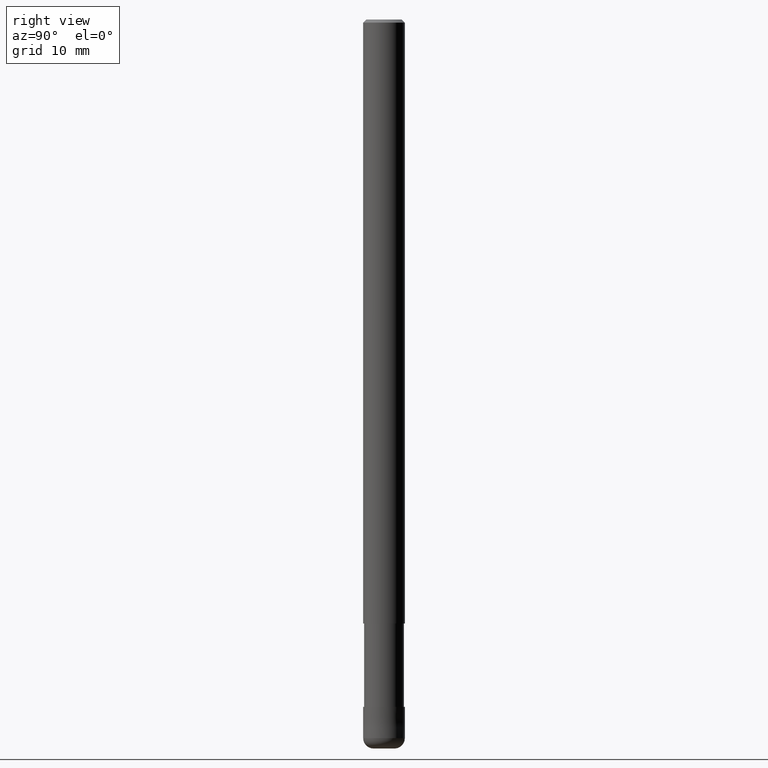
[diagram: clean part render]
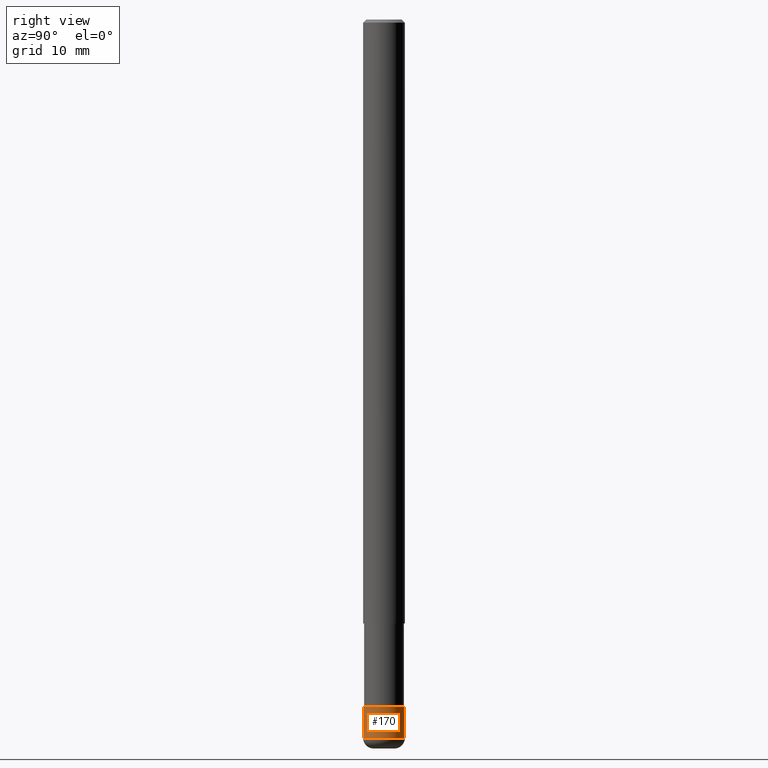
[diagram: same view with one face highlighted and labeled with its STEP entity id]
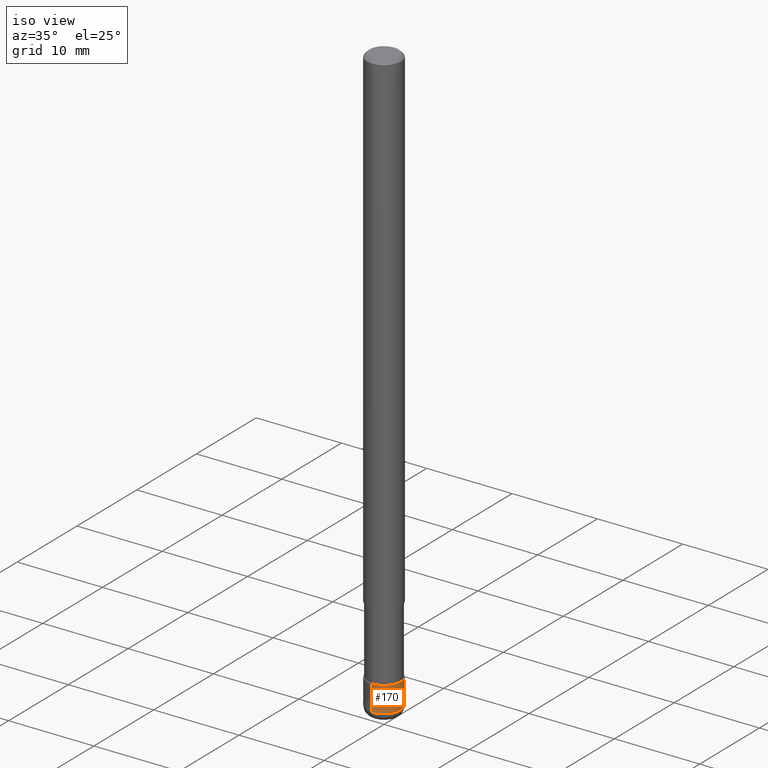
[diagram: same view with one face highlighted and labeled with its STEP entity id]
A machine part, right view. The second image highlights one B-rep face of the part: STEP entity #170.
A second angle (iso view) of the same face is appended — the face is thin or edge-on in the first view.
In plain terms, the highlighted conical surface has half-angle 0.002 deg.
Its self-contained STEP definition (entity closure, byte-faithful):
#102=EDGE_CURVE('',#106,#112,#240,.T.);
#106=VERTEX_POINT('',#244);
#112=VERTEX_POINT('',#252);
#124=EDGE_CURVE('',#106,#130,#267,.T.);
#126=VERTEX_POINT('',#269);
#130=VERTEX_POINT('',#273);
#170=ADVANCED_FACE('',(#316),#317,.T.);
#172=EDGE_CURVE('',#126,#112,#319,.T.);
#190=EDGE_CURVE('',#130,#126,#340,.T.);
#240=CIRCLE('',#389,1.9999);
#244=CARTESIAN_POINT('',(0.0,1.9999,-66.0));
#252=CARTESIAN_POINT('',(2.44909024700937E-016,-1.9999,-66.0));
#267=LINE('',#418,#419);
#269=CARTESIAN_POINT('',(2.44921270764475E-016,-2.0,-69.0));
#273=CARTESIAN_POINT('',(0.0,2.0,-69.0));
#316=FACE_OUTER_BOUND('',#483,.T.);
#317=CONICAL_SURFACE('',#484,1.99995,3.3333333320984E-005);
#319=LINE('',#487,#488);
#340=CIRCLE('',#513,2.0);
#389=AXIS2_PLACEMENT_3D('',#552,#553,#554);
#418=CARTESIAN_POINT('',(-2.44915147732706E-016,1.99995,-67.5));
#419=VECTOR('',#596,1.0);
#483=EDGE_LOOP('',(#651,#652,#653,#654));
#484=AXIS2_PLACEMENT_3D('',#655,#656,#657);
#487=CARTESIAN_POINT('',(2.44915147732706E-016,-1.99995,-67.5));
#488=VECTOR('',#658,1.0);
#513=AXIS2_PLACEMENT_3D('',#684,#685,#686);
#552=CARTESIAN_POINT('',(0.0,0.0,-66.0));
#553=DIRECTION('',(0.0,0.0,-1.0));
#554=DIRECTION('',(0.0,1.0,0.0));
#596=DIRECTION('',(-4.08202117713969E-021,3.33333333148111E-005,-0.999999999444445));
#651=ORIENTED_EDGE('',*,*,#124,.F.);
#652=ORIENTED_EDGE('',*,*,#102,.T.);
#653=ORIENTED_EDGE('',*,*,#172,.F.);
#654=ORIENTED_EDGE('',*,*,#190,.F.);
#655=CARTESIAN_POINT('',(0.0,0.0,-67.5));
#656=DIRECTION('',(0.0,-0.0,-1.0));
#657=DIRECTION('',(0.0,1.0,0.0));
#658=DIRECTION('',(-4.08202117713969E-021,3.33333333148111E-005,0.999999999444445));
#684=CARTESIAN_POINT('',(0.0,0.0,-69.0));
#685=DIRECTION('',(0.0,0.0,-1.0));
#686=DIRECTION('',(0.0,1.0,0.0));